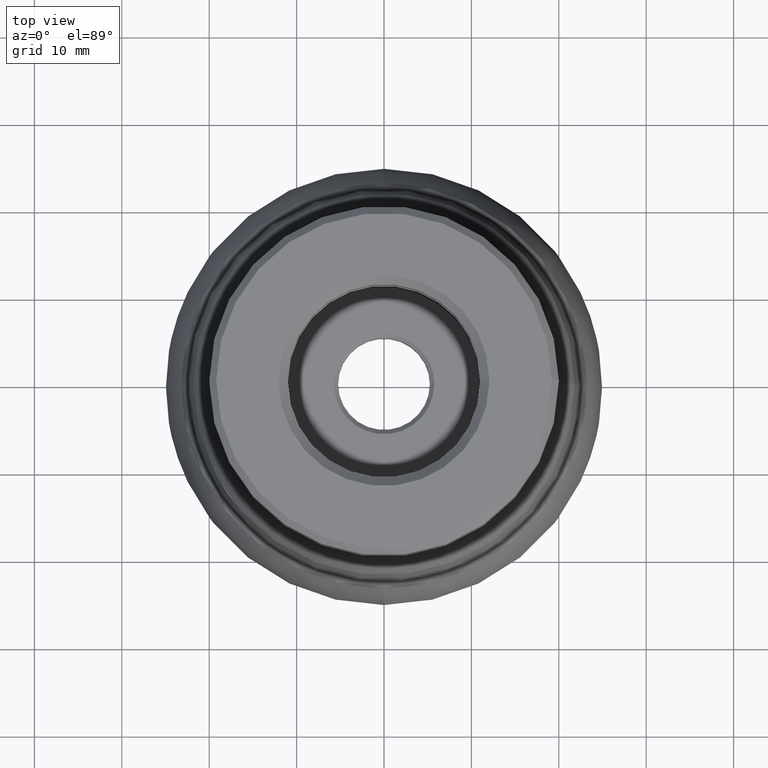
[diagram: clean part render]
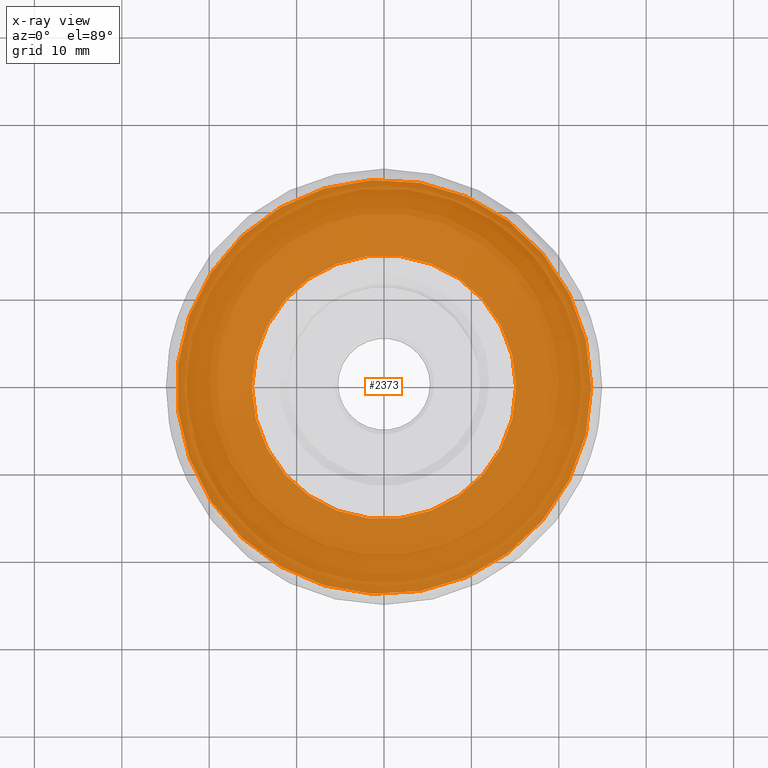
[diagram: x-ray — body ghosted, one internal face saturated and labeled with its STEP entity id]
A machine part, top view, then the same camera in x-ray: the body is ghosted and one INTERNAL B-rep face — a face not visible from any outside direction — is saturated and labeled: STEP entity #2373.
In plain terms, the highlighted conical surface has half-angle 80.637 deg.
Its self-contained STEP definition (entity closure, byte-faithful):
#26 = EDGE_LOOP ( 'NONE', ( #2080 ) ) ;
#141 = VERTEX_POINT ( 'NONE', #2061 ) ;
#454 = EDGE_CURVE ( 'NONE', #2917, #2917, #1166, .T. ) ;
#472 = EDGE_LOOP ( 'NONE', ( #774 ) ) ;
#493 = DIRECTION ( 'NONE',  ( -0.0000000000000000000, -0.0000000000000000000, 1.000000000000000000 ) ) ;
#682 = AXIS2_PLACEMENT_3D ( 'NONE', #1442, #2815, #1295 ) ;
#758 = FACE_BOUND ( 'NONE', #472, .T. ) ;
#769 = EDGE_CURVE ( 'NONE', #141, #141, #1388, .T. ) ;
#774 = ORIENTED_EDGE ( 'NONE', *, *, #454, .F. ) ;
#1001 = AXIS2_PLACEMENT_3D ( 'NONE', #2655, #493, #1989 ) ;
#1164 = FACE_OUTER_BOUND ( 'NONE', #26, .T. ) ;
#1166 = CIRCLE ( 'NONE', #1001, 15.11138000584483800 ) ;
#1203 = DIRECTION ( 'NONE',  ( 1.000000000000000000, 0.0000000000000000000, 0.0000000000000000000 ) ) ;
#1295 = DIRECTION ( 'NONE',  ( -1.000000000000000000, 0.0000000000000000000, 0.0000000000000000000 ) ) ;
#1388 = CIRCLE ( 'NONE', #2258, 23.71479475571995000 ) ;
#1442 = CARTESIAN_POINT ( 'NONE',  ( 0.0000000000000000000, 0.0000000000000000000, -2.431566961324251000 ) ) ;
#1695 = CONICAL_SURFACE ( 'NONE', #682, 23.71479475571995000, 1.407385551168835300 ) ;
#1722 = DIRECTION ( 'NONE',  ( -0.0000000000000000000, -0.0000000000000000000, 1.000000000000000000 ) ) ;
#1989 = DIRECTION ( 'NONE',  ( 1.000000000000000000, 0.0000000000000000000, 0.0000000000000000000 ) ) ;
#2061 = CARTESIAN_POINT ( 'NONE',  ( 23.71479475571995000, 0.0000000000000000000, -2.431566961324251000 ) ) ;
#2080 = ORIENTED_EDGE ( 'NONE', *, *, #769, .T. ) ;
#2258 = AXIS2_PLACEMENT_3D ( 'NONE', #2520, #1722, #1203 ) ;
#2373 = ADVANCED_FACE ( 'NONE', ( #758, #1164 ), #1695, .T. ) ;
#2520 = CARTESIAN_POINT ( 'NONE',  ( 0.0000000000000000000, 0.0000000000000000000, -2.431566961324251000 ) ) ;
#2655 = CARTESIAN_POINT ( 'NONE',  ( 0.0000000000000000000, 0.0000000000000000000, -1.013027288799073700 ) ) ;
#2815 = DIRECTION ( 'NONE',  ( 0.0000000000000000000, 0.0000000000000000000, -1.000000000000000000 ) ) ;
#2917 = VERTEX_POINT ( 'NONE', #2969 ) ;
#2969 = CARTESIAN_POINT ( 'NONE',  ( 15.11138000584483800, 0.0000000000000000000, -1.013027288799073700 ) ) ;